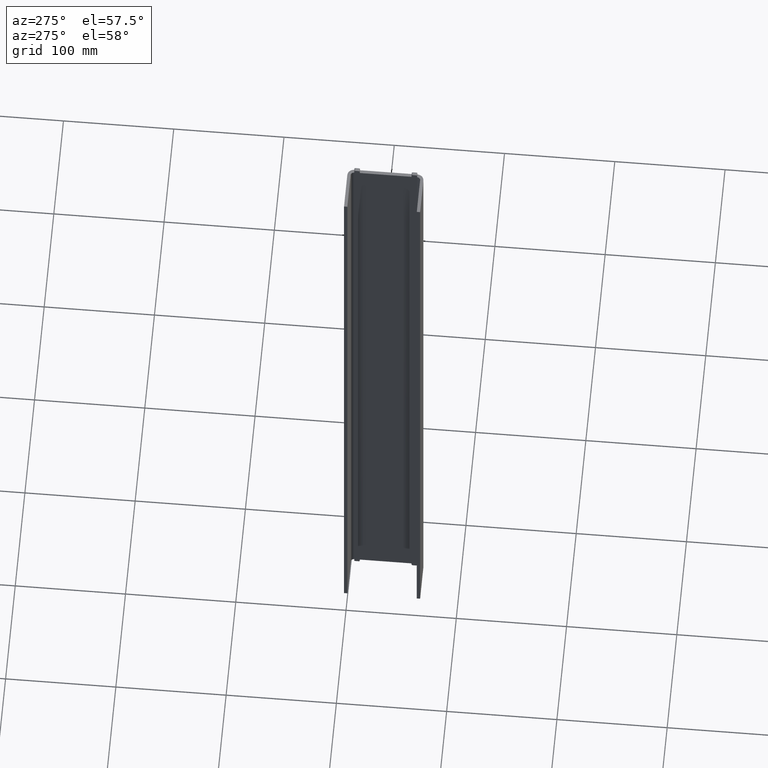
[diagram: clean part render]
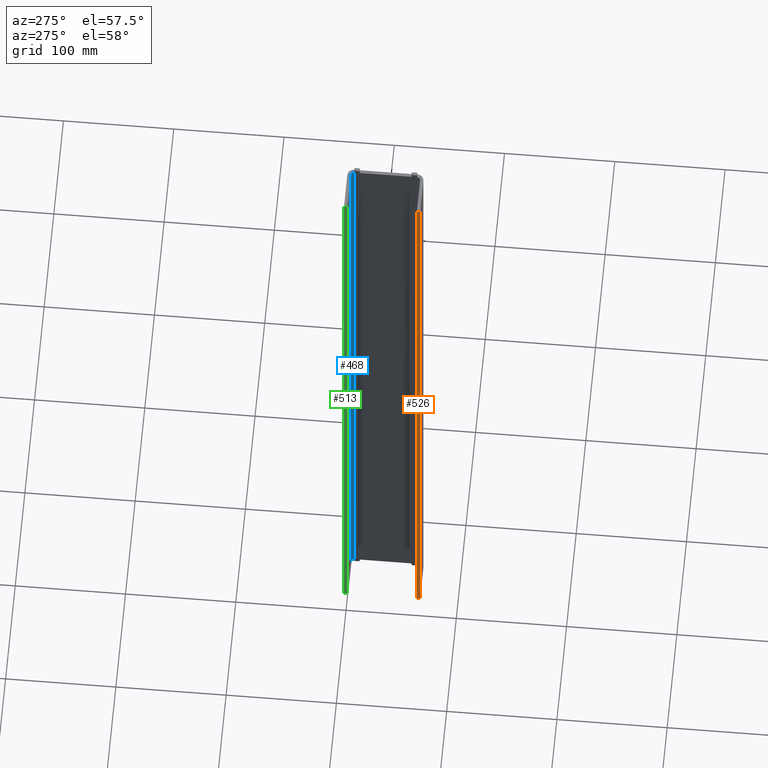
[diagram: same view with three faces highlighted in distinct colors, each labeled with its STEP entity id]
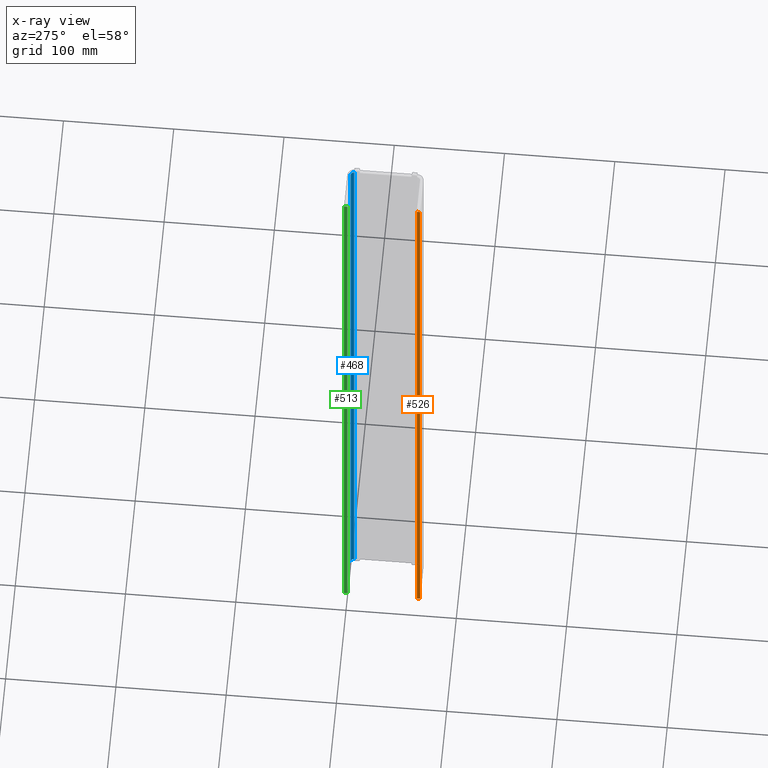
[diagram: x-ray of the same camera — body ghosted, the three highlighted faces saturated]
A machine part, auxiliary view with three faces highlighted in distinct colors.
The next image is the same camera in x-ray (body ghosted, the three faces saturated) — at least one of them is partly hidden behind the body in this view.
Their STEP definitions:

[orange] entity #526 — the highlighted planar face has unit normal (1, -0, 0).
#46 = ORIENTED_EDGE ( 'NONE', *, *, #193, .F. ) ;
#54 = VECTOR ( 'NONE', #362, 1000.000000000000000 ) ;
#62 = VERTEX_POINT ( 'NONE', #815 ) ;
#193 = EDGE_CURVE ( 'NONE', #62, #341, #1038, .T. ) ;
#222 = DIRECTION ( 'NONE',  ( 1.000000000000000000, -5.551115123125788224E-15, 0.000000000000000000 ) ) ;
#275 = LINE ( 'NONE', #905, #587 ) ;
#302 = DIRECTION ( 'NONE',  ( -0.000000000000000000, 0.000000000000000000, -1.000000000000000000 ) ) ;
#325 = CARTESIAN_POINT ( 'NONE',  ( 309.9999999999996021, -1163.305262667903889, 104.7558775263622834 ) ) ;
#326 = CARTESIAN_POINT ( 'NONE',  ( 309.9999999999996021, -1166.305262667903889, 104.7558775263622834 ) ) ;
#341 = VERTEX_POINT ( 'NONE', #584 ) ;
#358 = VECTOR ( 'NONE', #818, 1000.000000000000000 ) ;
#362 = DIRECTION ( 'NONE',  ( 5.551115123125788224E-15, 1.000000000000000000, -0.000000000000000000 ) ) ;
#381 = EDGE_CURVE ( 'NONE', #341, #755, #275, .T. ) ;
#446 = LINE ( 'NONE', #1274, #54 ) ;
#526 = ADVANCED_FACE ( 'NONE', ( #632 ), #705, .F. ) ;
#584 = CARTESIAN_POINT ( 'NONE',  ( 309.9999999999996021, -1166.305262667903889, -624.9999999999997726 ) ) ;
#587 = VECTOR ( 'NONE', #806, 1000.000000000000000 ) ;
#627 = CARTESIAN_POINT ( 'NONE',  ( 309.9999999999996021, -1163.305262667903889, 104.7558775263622834 ) ) ;
#632 = FACE_OUTER_BOUND ( 'NONE', #1081, .T. ) ;
#689 = ORIENTED_EDGE ( 'NONE', *, *, #381, .F. ) ;
#694 = VERTEX_POINT ( 'NONE', #1022 ) ;
#705 = PLANE ( 'NONE',  #934 ) ;
#737 = VECTOR ( 'NONE', #302, 1000.000000000000000 ) ;
#745 = LINE ( 'NONE', #627, #358 ) ;
#747 = ORIENTED_EDGE ( 'NONE', *, *, #853, .T. ) ;
#755 = VERTEX_POINT ( 'NONE', #839 ) ;
#806 = DIRECTION ( 'NONE',  ( 5.551115123125788224E-15, 1.000000000000000000, -0.000000000000000000 ) ) ;
#815 = CARTESIAN_POINT ( 'NONE',  ( 309.9999999999996021, -1166.305262667903889, 25.00000000000045119 ) ) ;
#818 = DIRECTION ( 'NONE',  ( -0.000000000000000000, -0.000000000000000000, -1.000000000000000000 ) ) ;
#839 = CARTESIAN_POINT ( 'NONE',  ( 309.9999999999996021, -1163.305262667903889, -624.9999999999997726 ) ) ;
#853 = EDGE_CURVE ( 'NONE', #694, #755, #745, .T. ) ;
#905 = CARTESIAN_POINT ( 'NONE',  ( 309.9999999999996021, -1163.305262667903889, -624.9999999999997726 ) ) ;
#934 = AXIS2_PLACEMENT_3D ( 'NONE', #325, #222, #1048 ) ;
#1010 = ORIENTED_EDGE ( 'NONE', *, *, #1140, .T. ) ;
#1022 = CARTESIAN_POINT ( 'NONE',  ( 309.9999999999996021, -1163.305262667903889, 25.00000000000045119 ) ) ;
#1038 = LINE ( 'NONE', #326, #737 ) ;
#1048 = DIRECTION ( 'NONE',  ( 0.000000000000000000, 0.000000000000000000, 1.000000000000000000 ) ) ;
#1081 = EDGE_LOOP ( 'NONE', ( #689, #46, #1010, #747 ) ) ;
#1140 = EDGE_CURVE ( 'NONE', #62, #694, #446, .T. ) ;
#1274 = CARTESIAN_POINT ( 'NONE',  ( 309.9999999999996021, -1163.305262667903889, 25.00000000000045119 ) ) ;

[blue] entity #468 — the highlighted cylindrical surface (edge-blend (fillet) strip) has radius 3 mm, axis along (0, 0, 1).
#17 = CARTESIAN_POINT ( 'NONE',  ( 346.9999999999996589, -1103.305262667903889, -624.9999999999997726 ) ) ;
#51 = AXIS2_PLACEMENT_3D ( 'NONE', #802, #188, #394 ) ;
#74 = VECTOR ( 'NONE', #157, 1000.000000000000000 ) ;
#90 = AXIS2_PLACEMENT_3D ( 'NONE', #380, #795, #1192 ) ;
#157 = DIRECTION ( 'NONE',  ( -0.000000000000000000, -0.000000000000000000, -1.000000000000000000 ) ) ;
#158 = VERTEX_POINT ( 'NONE', #218 ) ;
#170 = LINE ( 'NONE', #1290, #74 ) ;
#188 = DIRECTION ( 'NONE',  ( -0.000000000000000000, -0.000000000000000000, -1.000000000000000000 ) ) ;
#218 = CARTESIAN_POINT ( 'NONE',  ( 346.9999999999996589, -1103.305262667904117, 25.00000000000045119 ) ) ;
#248 = EDGE_CURVE ( 'NONE', #764, #493, #435, .T. ) ;
#261 = ORIENTED_EDGE ( 'NONE', *, *, #248, .T. ) ;
#298 = DIRECTION ( 'NONE',  ( 0.000000000000000000, -0.000000000000000000, 1.000000000000000000 ) ) ;
#380 = CARTESIAN_POINT ( 'NONE',  ( 343.9999999999996589, -1103.305262667903889, 104.7558775263622834 ) ) ;
#383 = EDGE_CURVE ( 'NONE', #764, #700, #1210, .T. ) ;
#385 = EDGE_LOOP ( 'NONE', ( #1249, #449, #261, #557 ) ) ;
#394 = DIRECTION ( 'NONE',  ( -1.000000000000000000, 0.000000000000000000, 0.000000000000000000 ) ) ;
#435 = CIRCLE ( 'NONE', #51, 3.000000000000002665 ) ;
#449 = ORIENTED_EDGE ( 'NONE', *, *, #383, .F. ) ;
#468 = ADVANCED_FACE ( 'NONE', ( #897 ), #1302, .F. ) ;
#493 = VERTEX_POINT ( 'NONE', #17 ) ;
#547 = DIRECTION ( 'NONE',  ( 0.000000000000000000, 0.000000000000000000, 1.000000000000000000 ) ) ;
#557 = ORIENTED_EDGE ( 'NONE', *, *, #1119, .F. ) ;
#613 = CARTESIAN_POINT ( 'NONE',  ( 343.9999999999996589, -1100.305262667903662, -624.9999999999997726 ) ) ;
#672 = DIRECTION ( 'NONE',  ( -1.000000000000000000, 0.000000000000000000, 0.000000000000000000 ) ) ;
#700 = VERTEX_POINT ( 'NONE', #1016 ) ;
#764 = VERTEX_POINT ( 'NONE', #613 ) ;
#795 = DIRECTION ( 'NONE',  ( 0.000000000000000000, 0.000000000000000000, 1.000000000000000000 ) ) ;
#802 = CARTESIAN_POINT ( 'NONE',  ( 343.9999999999996589, -1103.305262667903889, -624.9999999999997726 ) ) ;
#867 = EDGE_CURVE ( 'NONE', #158, #700, #1104, .T. ) ;
#897 = FACE_OUTER_BOUND ( 'NONE', #385, .T. ) ;
#1016 = CARTESIAN_POINT ( 'NONE',  ( 343.9999999999996589, -1100.305262667903889, 25.00000000000046541 ) ) ;
#1060 = CARTESIAN_POINT ( 'NONE',  ( 343.9999999999996589, -1103.305262667903889, 25.00000000000046541 ) ) ;
#1104 = CIRCLE ( 'NONE', #1254, 3.000000000000002665 ) ;
#1119 = EDGE_CURVE ( 'NONE', #158, #493, #170, .T. ) ;
#1159 = VECTOR ( 'NONE', #298, 1000.000000000000000 ) ;
#1192 = DIRECTION ( 'NONE',  ( -1.000000000000000000, 0.000000000000000000, 0.000000000000000000 ) ) ;
#1200 = CARTESIAN_POINT ( 'NONE',  ( 343.9999999999996589, -1100.305262667903662, 104.7558775263622834 ) ) ;
#1210 = LINE ( 'NONE', #1200, #1159 ) ;
#1249 = ORIENTED_EDGE ( 'NONE', *, *, #867, .T. ) ;
#1254 = AXIS2_PLACEMENT_3D ( 'NONE', #1060, #547, #672 ) ;
#1290 = CARTESIAN_POINT ( 'NONE',  ( 346.9999999999996589, -1103.305262667903889, 104.7558775263622834 ) ) ;
#1302 = CYLINDRICAL_SURFACE ( 'NONE', #90, 3.000000000000002665 ) ;

[green] entity #513 — the highlighted planar face has unit normal (-1, 0, 0).
#39 = CARTESIAN_POINT ( 'NONE',  ( 309.9999999999996021, -1100.305262667903662, 104.7558775263622834 ) ) ;
#73 = VECTOR ( 'NONE', #739, 1000.000000000000000 ) ;
#133 = ORIENTED_EDGE ( 'NONE', *, *, #524, .F. ) ;
#150 = VECTOR ( 'NONE', #512, 1000.000000000000000 ) ;
#202 = DIRECTION ( 'NONE',  ( -1.000000000000000000, 0.000000000000000000, 0.000000000000000000 ) ) ;
#203 = LINE ( 'NONE', #308, #150 ) ;
#224 = VERTEX_POINT ( 'NONE', #663 ) ;
#243 = ORIENTED_EDGE ( 'NONE', *, *, #650, .T. ) ;
#308 = CARTESIAN_POINT ( 'NONE',  ( 309.9999999999996021, -1097.305262667903889, 104.7558775263622834 ) ) ;
#372 = EDGE_CURVE ( 'NONE', #444, #592, #1102, .T. ) ;
#389 = LINE ( 'NONE', #994, #73 ) ;
#391 = ORIENTED_EDGE ( 'NONE', *, *, #372, .F. ) ;
#407 = LINE ( 'NONE', #1221, #1299 ) ;
#416 = FACE_OUTER_BOUND ( 'NONE', #843, .T. ) ;
#439 = AXIS2_PLACEMENT_3D ( 'NONE', #39, #202, #622 ) ;
#444 = VERTEX_POINT ( 'NONE', #1092 ) ;
#494 = CARTESIAN_POINT ( 'NONE',  ( 309.9999999999996021, -1100.305262667903662, 25.00000000000046541 ) ) ;
#512 = DIRECTION ( 'NONE',  ( -0.000000000000000000, 0.000000000000000000, -1.000000000000000000 ) ) ;
#513 = ADVANCED_FACE ( 'NONE', ( #416 ), #822, .T. ) ;
#524 = EDGE_CURVE ( 'NONE', #592, #224, #407, .T. ) ;
#592 = VERTEX_POINT ( 'NONE', #724 ) ;
#622 = DIRECTION ( 'NONE',  ( -0.000000000000000000, 0.000000000000000000, -1.000000000000000000 ) ) ;
#631 = VECTOR ( 'NONE', #1294, 1000.000000000000000 ) ;
#650 = EDGE_CURVE ( 'NONE', #1132, #224, #389, .T. ) ;
#663 = CARTESIAN_POINT ( 'NONE',  ( 309.9999999999996021, -1100.305262667903662, -624.9999999999997726 ) ) ;
#724 = CARTESIAN_POINT ( 'NONE',  ( 309.9999999999996021, -1100.305262667903662, 25.00000000000046541 ) ) ;
#739 = DIRECTION ( 'NONE',  ( 0.000000000000000000, -1.000000000000000000, 0.000000000000000000 ) ) ;
#822 = PLANE ( 'NONE',  #439 ) ;
#843 = EDGE_LOOP ( 'NONE', ( #391, #1095, #243, #133 ) ) ;
#921 = DIRECTION ( 'NONE',  ( -0.000000000000000000, 0.000000000000000000, -1.000000000000000000 ) ) ;
#966 = EDGE_CURVE ( 'NONE', #444, #1132, #203, .T. ) ;
#994 = CARTESIAN_POINT ( 'NONE',  ( 309.9999999999996021, -1100.305262667903662, -624.9999999999997726 ) ) ;
#1092 = CARTESIAN_POINT ( 'NONE',  ( 309.9999999999996021, -1097.305262667903889, 25.00000000000046541 ) ) ;
#1095 = ORIENTED_EDGE ( 'NONE', *, *, #966, .T. ) ;
#1102 = LINE ( 'NONE', #494, #631 ) ;
#1132 = VERTEX_POINT ( 'NONE', #1180 ) ;
#1180 = CARTESIAN_POINT ( 'NONE',  ( 309.9999999999996021, -1097.305262667903889, -624.9999999999997726 ) ) ;
#1221 = CARTESIAN_POINT ( 'NONE',  ( 309.9999999999996021, -1100.305262667903662, 104.7558775263622834 ) ) ;
#1294 = DIRECTION ( 'NONE',  ( 0.000000000000000000, -1.000000000000000000, 0.000000000000000000 ) ) ;
#1299 = VECTOR ( 'NONE', #921, 1000.000000000000000 ) ;